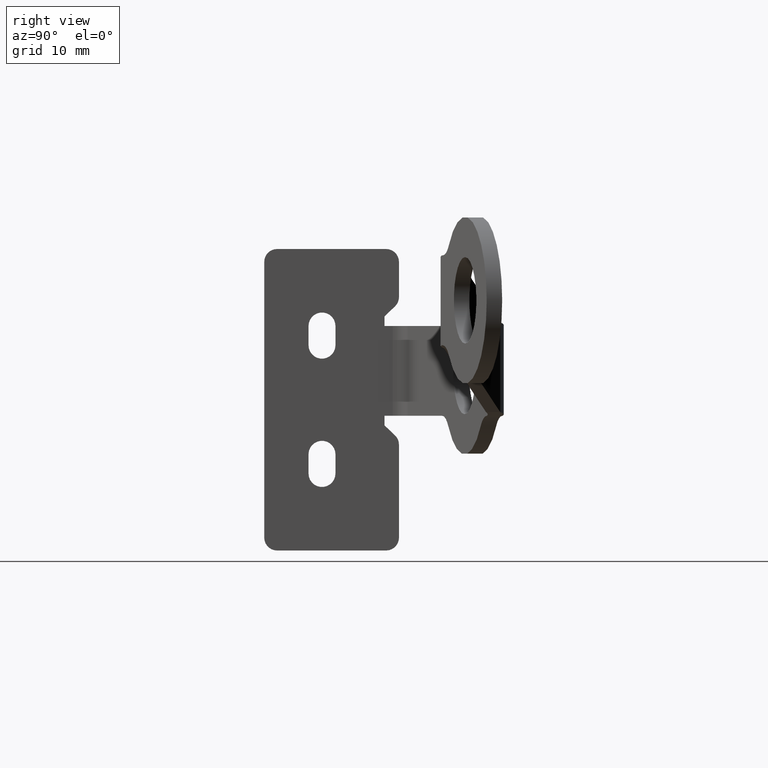
[diagram: clean part render]
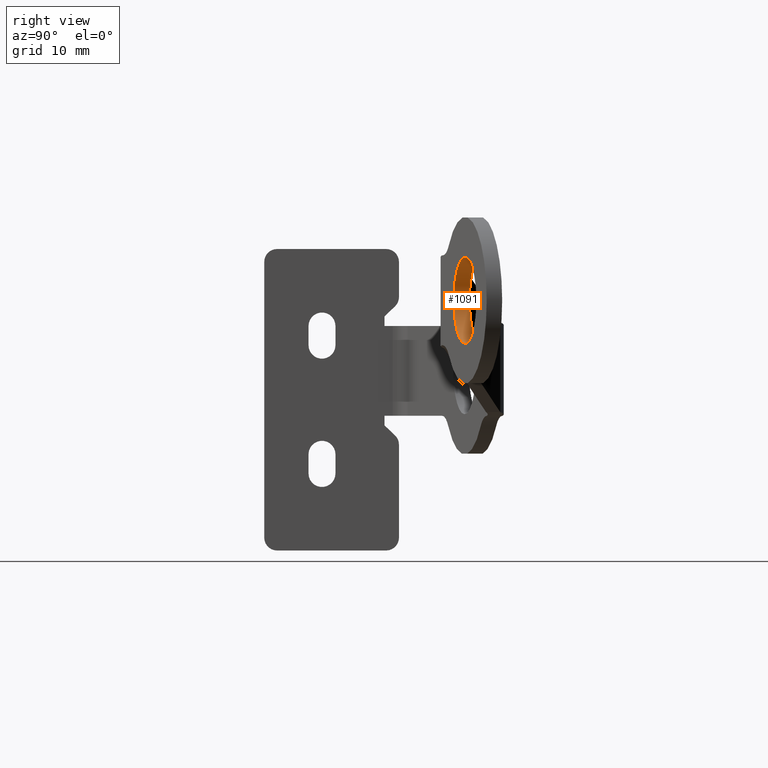
[diagram: same view with one face highlighted and labeled with its STEP entity id]
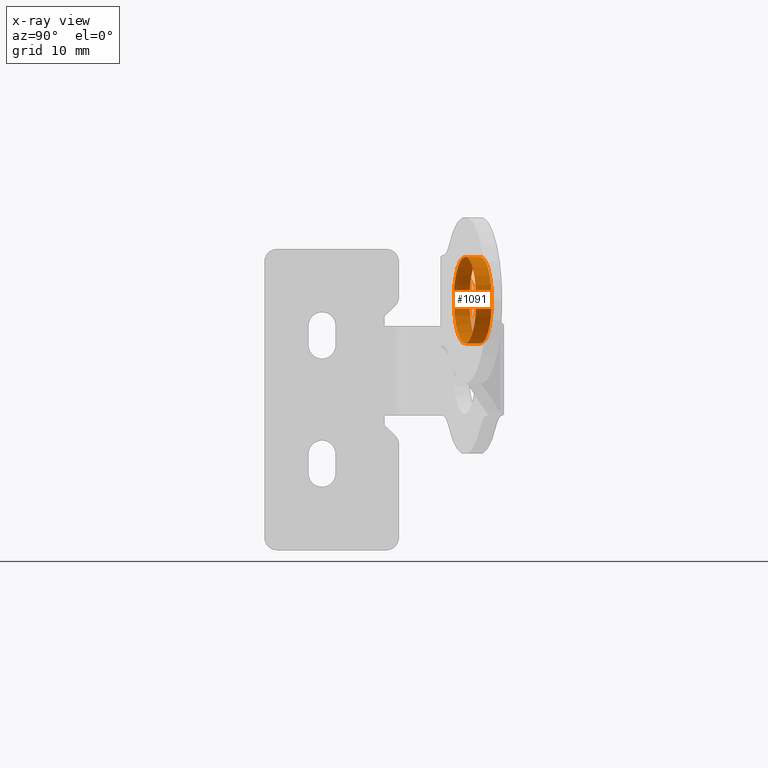
[diagram: x-ray of the same camera — body ghosted, the highlighted face saturated]
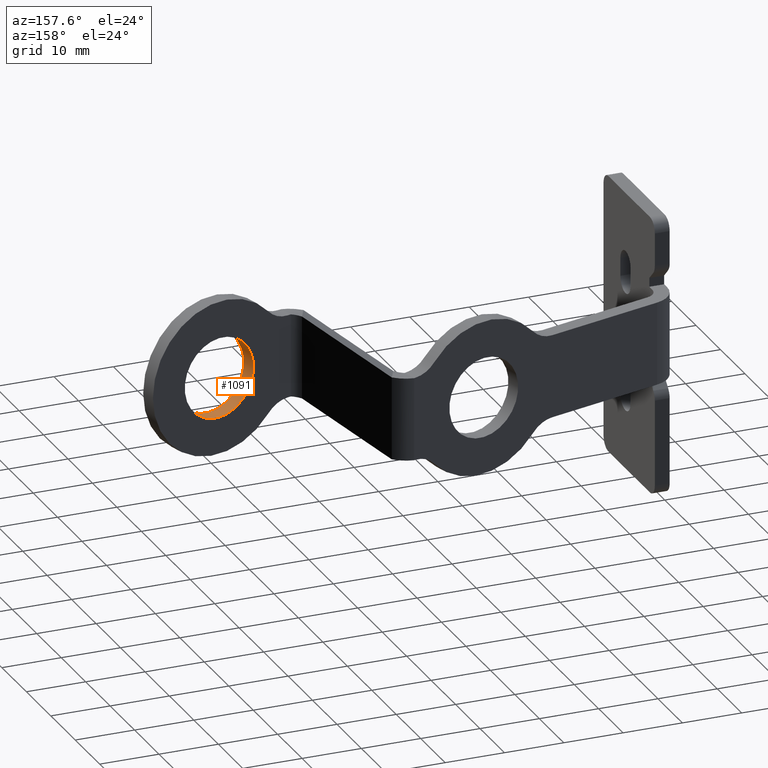
[diagram: same view with one face highlighted and labeled with its STEP entity id]
A machine part, right view. The second image highlights one B-rep face of the part: STEP entity #1091.
The next image is the same camera in x-ray: the body ghosted, the highlighted face saturated — about 0% of this face is hidden behind the body in this view.
A second angle (auxiliary view) of the same face is appended — the face is thin or edge-on in the first view.
In plain terms, the highlighted cylindrical surface (bore or boss wall) has radius 6.75 mm, axis along (0.2588, -0.9659, 0).
Its self-contained STEP definition (entity closure, byte-faithful):
#73=CIRCLE('',#1203,6.75);
#74=CIRCLE('',#1206,6.75);
#96=CYLINDRICAL_SURFACE('',#1207,6.75);
#136=FACE_OUTER_BOUND('',#202,.T.);
#202=EDGE_LOOP('',(#856,#857,#858,#859));
#302=LINE('',#1769,#408);
#408=VECTOR('',#1445,6.75);
#526=VERTEX_POINT('',#1756);
#529=VERTEX_POINT('',#1766);
#648=EDGE_CURVE('',#526,#526,#73,.T.);
#653=EDGE_CURVE('',#529,#529,#74,.T.);
#654=EDGE_CURVE('',#529,#526,#302,.T.);
#856=ORIENTED_EDGE('',*,*,#653,.T.);
#857=ORIENTED_EDGE('',*,*,#654,.T.);
#858=ORIENTED_EDGE('',*,*,#648,.T.);
#859=ORIENTED_EDGE('',*,*,#654,.F.);
#1091=ADVANCED_FACE('',(#136),#96,.F.);
#1203=AXIS2_PLACEMENT_3D('',#1757,#1431,#1432);
#1206=AXIS2_PLACEMENT_3D('',#1767,#1441,#1442);
#1207=AXIS2_PLACEMENT_3D('',#1768,#1443,#1444);
#1431=DIRECTION('center_axis',(0.258819045102515,-0.96592582628907,0.));
#1432=DIRECTION('ref_axis',(0.,0.,1.));
#1441=DIRECTION('center_axis',(-0.258819045102521,0.965925826289068,0.));
#1442=DIRECTION('ref_axis',(0.,0.,1.));
#1443=DIRECTION('center_axis',(0.258819045102521,-0.965925826289068,0.));
#1444=DIRECTION('ref_axis',(0.,0.,1.));
#1445=DIRECTION('',(0.258819045102521,-0.965925826289068,0.));
#1756=CARTESIAN_POINT('',(81.8406333639636,22.3068406240552,18.75));
#1757=CARTESIAN_POINT('Origin',(81.8406333639638,22.3068406240545,25.5));
#1766=CARTESIAN_POINT('',(81.1935857512074,24.7216551897778,18.75));
#1767=CARTESIAN_POINT('Origin',(81.1935857512074,24.7216551897778,25.5));
#1768=CARTESIAN_POINT('Origin',(86.4542915671517,5.08843380100053,25.5));
#1769=CARTESIAN_POINT('',(86.4542915671517,5.08843380100053,18.75));